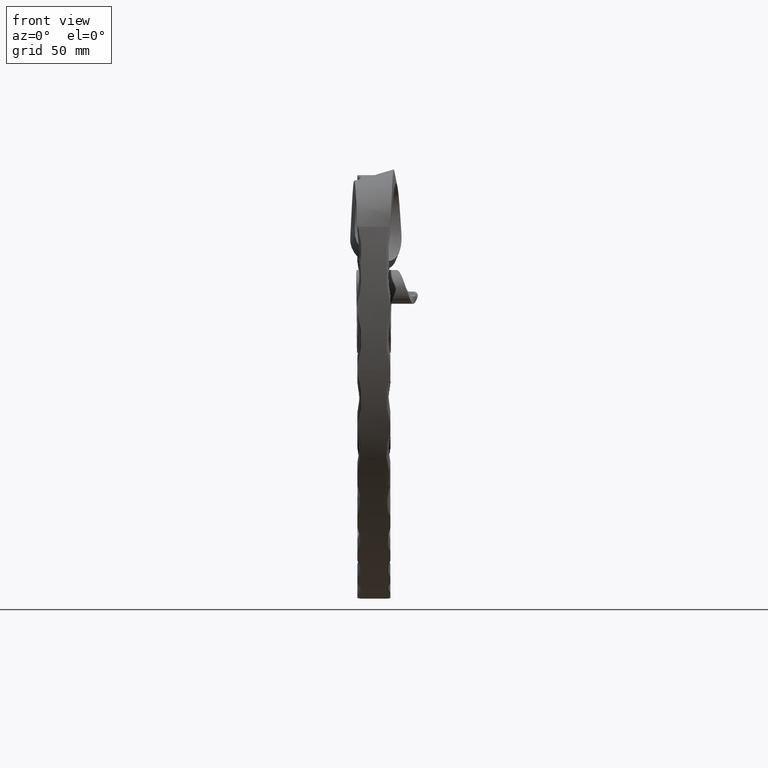
[diagram: clean part render]
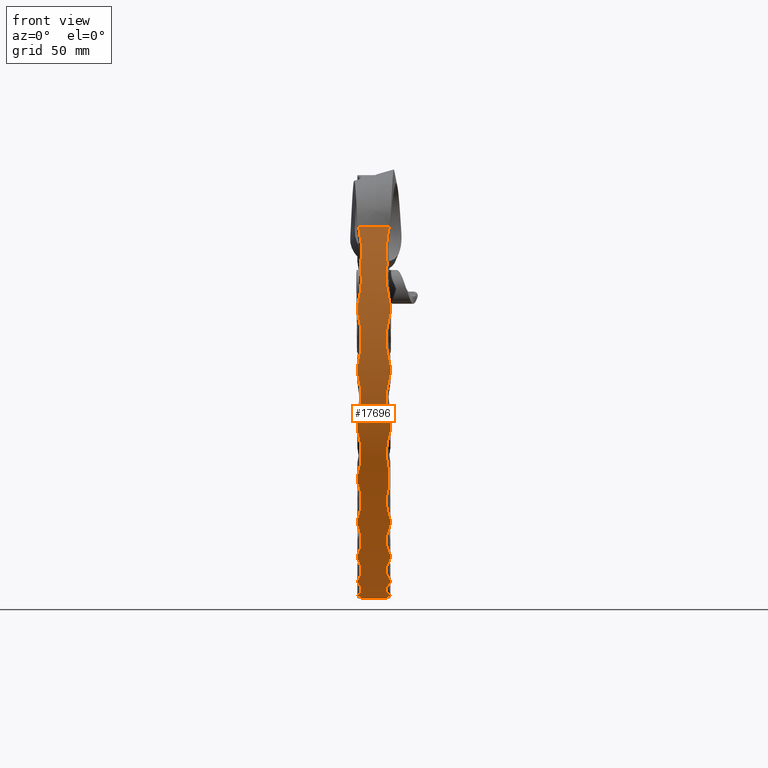
[diagram: same view with one face highlighted and labeled with its STEP entity id]
A machine part, front view. The second image highlights one B-rep face of the part: STEP entity #17696.
In plain terms, the highlighted cylindrical surface (partial cylindrical patch) has radius 179.967 mm, axis along (-1, -0, 0).
Its self-contained STEP definition (entity closure, byte-faithful):
#53 = VERTEX_POINT ( 'NONE', #21587 ) ;
#73 = DIRECTION ( 'NONE',  ( 0.0000000000000000000, 0.0000000000000000000, 1.000000000000000000 ) ) ;
#113 = CARTESIAN_POINT ( 'NONE',  ( 6.176503253794312100, 146.1620550236131900, -99.31292837517071300 ) ) ;
#235 = VERTEX_POINT ( 'NONE', #668 ) ;
#296 = VERTEX_POINT ( 'NONE', #1851 ) ;
#371 = B_SPLINE_CURVE_WITH_KNOTS ( 'NONE', 3,
 ( #26582, #7784, #18383, #6065, #20472, #8131, #22555, #10220, #24608, #12274 ),
 .UNSPECIFIED., .F., .F.,
 ( 4, 2, 2, 2, 4 ),
 ( 0.0000000000000000000, 0.009045962063268565100, 0.01130745257908568600, 0.01356894309490280600, 0.01809192412653703000 ),
 .UNSPECIFIED. ) ;
#569 = CARTESIAN_POINT ( 'NONE',  ( 0.0000000000000000000, 179.9668163863532300, 77.46681638635324400 ) ) ;
#605 = CARTESIAN_POINT ( 'NONE',  ( -6.827882187243727900, 16.26432204307453600, 2.664846962024886700 ) ) ;
#666 = CARTESIAN_POINT ( 'NONE',  ( 5.996456189705958700, 19.40543882302344500, -3.860385656431399900 ) ) ;
#668 = CARTESIAN_POINT ( 'NONE',  ( -7.417567950427967500, 2.775557561562891400E-014, 77.46681638635321600 ) ) ;
#687 = CARTESIAN_POINT ( 'NONE',  ( -6.919751718304326900, 162.5838808083381700, -101.6608608686288400 ) ) ;
#730 = CIRCLE ( 'NONE', #20687, 179.9668163863532300 ) ;
#742 = DIRECTION ( 'NONE',  ( 0.0000000000000000000, 0.0000000000000000000, 1.000000000000000000 ) ) ;
#788 = DIRECTION ( 'NONE',  ( -1.000000000000000000, -0.0000000000000000000, 0.0000000000000000000 ) ) ;
#912 = AXIS2_PLACEMENT_3D ( 'NONE', #18615, #6291, #20695 ) ;
#923 = ORIENTED_EDGE ( 'NONE', *, *, #16154, .T. ) ;
#960 = EDGE_CURVE ( 'NONE', #19304, #22079, #14930, .T. ) ;
#978 = CARTESIAN_POINT ( 'NONE',  ( -8.000000000000000000, 179.9668163863532300, 77.46681638635324400 ) ) ;
#1030 = CARTESIAN_POINT ( 'NONE',  ( 6.039150493033625700, 1.957760996837844700, 50.93812338866422400 ) ) ;
#1093 = CARTESIAN_POINT ( 'NONE',  ( 6.176503253794316500, 115.9917145749487300, -90.76227264691046100 ) ) ;
#1173 = ORIENTED_EDGE ( 'NONE', *, *, #18882, .T. ) ;
#1215 = CARTESIAN_POINT ( 'NONE',  ( 8.000000000000000000, 13.39351174735673000, 9.339074739624406300 ) ) ;
#1250 = CARTESIAN_POINT ( 'NONE',  ( -5.996456189705950700, 7.726618554629790300, 25.24245417836802500 ) ) ;
#1280 = EDGE_CURVE ( 'NONE', #7350, #12478, #1398, .T. ) ;
#1338 = CARTESIAN_POINT ( 'NONE',  ( -8.000000000000000000, 29.10781676536441900, -20.66379674529830600 ) ) ;
#1343 = CYLINDRICAL_SURFACE ( 'NONE', #13487, 179.9668163863532300 ) ;
#1356 = CARTESIAN_POINT ( 'NONE',  ( 6.336598732756095300, 0.9002550330176963800, 59.48845146260416100 ) ) ;
#1362 = ORIENTED_EDGE ( 'NONE', *, *, #16120, .T. ) ;
#1374 = EDGE_CURVE ( 'NONE', #24639, #53, #17170, .T. ) ;
#1387 = CARTESIAN_POINT ( 'NONE',  ( 8.000000000000000000, 179.9668163863532300, 77.46681638635324400 ) ) ;
#1398 = CIRCLE ( 'NONE', #912, 179.9668163863532300 ) ;
#1408 = ORIENTED_EDGE ( 'NONE', *, *, #1280, .F. ) ;
#1435 = VERTEX_POINT ( 'NONE', #21686 ) ;
#1463 = CARTESIAN_POINT ( 'NONE',  ( 8.000000000000000000, 179.9668163863532300, 77.46681638635324400 ) ) ;
#1640 = CARTESIAN_POINT ( 'NONE',  ( 7.437723017904978900, 68.14663142114298500, -63.55928736838796300 ) ) ;
#1678 = CARTESIAN_POINT ( 'NONE',  ( -6.176503253794319200, 87.76343341715569600, -77.10477291057038900 ) ) ;
#1851 = CARTESIAN_POINT ( 'NONE',  ( -8.000000000000000000, 14.36518457698943200, 7.010059845086943600 ) ) ;
#1938 = CARTESIAN_POINT ( 'NONE',  ( -8.000000000000000000, 155.5942177609980200, -100.8419928085003100 ) ) ;
#1949 = B_SPLINE_CURVE_WITH_KNOTS ( 'NONE', 3,
 ( #24783, #22727, #8038, #113, #14514, #2166, #16561, #4233, #18644, #6319 ),
 .UNSPECIFIED., .F., .F.,
 ( 4, 2, 2, 2, 4 ),
 ( 0.0000000000000000000, 0.007284974933649790800, 0.01456994986729958200, 0.02185492480094937400, 0.02913989973459916300 ),
 .UNSPECIFIED. ) ;
#1966 = DIRECTION ( 'NONE',  ( -1.000000000000000000, -0.0000000000000000000, 0.0000000000000000000 ) ) ;
#2011 = B_SPLINE_CURVE_WITH_KNOTS ( 'NONE', 3,
 ( #16039, #1640, #3709, #18117, #5804, #20201, #7861, #22286, #9940, #24339, #11997, #26397 ),
 .UNSPECIFIED., .F., .F.,
 ( 4, 2, 2, 2, 2, 4 ),
 ( 0.0000000000000000000, 0.006213590475578920600, 0.01242718095115784100, 0.01553397618894730400, 0.01864077142673676100, 0.02485436190231568900 ),
 .UNSPECIFIED. ) ;
#2166 = CARTESIAN_POINT ( 'NONE',  ( 5.996456189705952500, 138.9895157614755300, -97.78993980478607300 ) ) ;
#2227 = CARTESIAN_POINT ( 'NONE',  ( 8.000000000000000000, 179.9668163863532300, 77.46681638635324400 ) ) ;
#2483 = CARTESIAN_POINT ( 'NONE',  ( -8.000000000000000000, 27.74664804436377400, -18.53878423244274700 ) ) ;
#2540 = CARTESIAN_POINT ( 'NONE',  ( -8.000000000000000000, 96.10454843939962200, -81.76626753477390300 ) ) ;
#2541 = CARTESIAN_POINT ( 'NONE',  ( 5.873035981563065300, 172.6217960026988900, -102.3873230414218200 ) ) ;
#2586 = AXIS2_PLACEMENT_3D ( 'NONE', #25413, #13099, #742 ) ;
#2667 = CARTESIAN_POINT ( 'NONE',  ( -5.996456189705957800, 19.40543882302344900, -3.860385656431403000 ) ) ;
#2685 = ORIENTED_EDGE ( 'NONE', *, *, #24464, .T. ) ;
#2710 = CARTESIAN_POINT ( 'NONE',  ( 6.845041666498108400, 91.92725129679624300, -79.51367612014583100 ) ) ;
#2736 = CARTESIAN_POINT ( 'NONE',  ( 6.827882187243720800, 16.26432204307453600, 2.664846962024884900 ) ) ;
#2755 = CARTESIAN_POINT ( 'NONE',  ( -6.231548981046289600, 167.1399754296952300, -102.0516467300838300 ) ) ;
#2761 = DIRECTION ( 'NONE',  ( -1.000000000000000000, -0.0000000000000000000, 0.0000000000000000000 ) ) ;
#3014 = B_SPLINE_CURVE_WITH_KNOTS ( 'NONE', 3,
 ( #1356, #17650, #26036, #3424, #17826, #5510, #19920, #7583, #22001, #9650 ),
 .UNSPECIFIED., .F., .F.,
 ( 4, 2, 2, 2, 4 ),
 ( 0.0000000000000000000, 0.004531045892015666200, 0.006796568838023467700, 0.009062091784031270000, 0.01812418356806239100 ),
 .UNSPECIFIED. ) ;
#3042 = EDGE_CURVE ( 'NONE', #7898, #12057, #3014, .T. ) ;
#3045 = DIRECTION ( 'NONE',  ( 0.0000000000000000000, 0.0000000000000000000, 1.000000000000000000 ) ) ;
#3096 = CARTESIAN_POINT ( 'NONE',  ( 6.031649091904896000, 1.268117296386812100, 56.07055539799305400 ) ) ;
#3155 = CARTESIAN_POINT ( 'NONE',  ( 5.996456189705956100, 109.1923850624090300, -88.01747177392606100 ) ) ;
#3215 = EDGE_CURVE ( 'NONE', #12465, #19965, #17462, .T. ) ;
#3230 = CARTESIAN_POINT ( 'NONE',  ( -7.327193560248932900, 30.39449547481483900, -22.64184474425354700 ) ) ;
#3247 = VERTEX_POINT ( 'NONE', #23419 ) ;
#3316 = CARTESIAN_POINT ( 'NONE',  ( -6.176503253794321900, 9.997315987711525400, 18.27045684476081500 ) ) ;
#3350 = EDGE_CURVE ( 'NONE', #21818, #5110, #22204, .T. ) ;
#3407 = CARTESIAN_POINT ( 'NONE',  ( -6.827882187243739400, 31.73232178105328000, -24.61342603636359500 ) ) ;
#3424 = CARTESIAN_POINT ( 'NONE',  ( 5.998649452621048500, 0.4485060393287679800, 64.74670718760430100 ) ) ;
#3460 = DIRECTION ( 'NONE',  ( 0.0000000000000000000, 0.0000000000000000000, 1.000000000000000000 ) ) ;
#3528 = EDGE_CURVE ( 'NONE', #20594, #9747, #10076, .T. ) ;
#3530 = B_SPLINE_CURVE_WITH_KNOTS ( 'NONE', 3,
 ( #14585, #12521, #16635, #4310, #18719, #6390, #20796, #8455, #22893, #10537 ),
 .UNSPECIFIED., .F., .F.,
 ( 4, 2, 2, 2, 4 ),
 ( 0.0000000000000000000, 0.007285091840669814600, 0.01457018368133962900, 0.02185527552200944300, 0.02914036736267925900 ),
 .UNSPECIFIED. ) ;
#3537 = DIRECTION ( 'NONE',  ( 0.0000000000000000000, 0.0000000000000000000, 1.000000000000000000 ) ) ;
#3606 = B_SPLINE_CURVE_WITH_KNOTS ( 'NONE', 3,
 ( #13266, #7230, #13442, #1093, #15489, #3155, #17565, #5247, #19653, #7321 ),
 .UNSPECIFIED., .F., .F.,
 ( 4, 2, 2, 2, 4 ),
 ( 0.0000000000000000000, 0.007284974933649776900, 0.01456994986729955400, 0.02185492480094933200, 0.02913989973459910800 ),
 .UNSPECIFIED. ) ;
#3709 = CARTESIAN_POINT ( 'NONE',  ( 6.994550879125206700, 66.56260232213919900, -62.28913213118612200 ) ) ;
#3748 = CARTESIAN_POINT ( 'NONE',  ( -7.340771855430522100, 94.01415967294786900, -80.66533587830787200 ) ) ;
#3839 = ORIENTED_EDGE ( 'NONE', *, *, #960, .F. ) ;
#3928 = CARTESIAN_POINT ( 'NONE',  ( -8.000000000000000000, 29.10781676536441900, -20.66379674529830600 ) ) ;
#3999 = VERTEX_POINT ( 'NONE', #15913 ) ;
#4031 = CARTESIAN_POINT ( 'NONE',  ( 6.336598732756095300, 0.9002550330176963800, 59.48845146260416100 ) ) ;
#4184 = AXIS2_PLACEMENT_3D ( 'NONE', #978, #15376, #3045 ) ;
#4233 = CARTESIAN_POINT ( 'NONE',  ( 6.827882187243744700, 131.9725483744565800, -95.99900595906318300 ) ) ;
#4267 = CARTESIAN_POINT ( 'NONE',  ( -8.000000000000000000, 71.74517500213185900, -66.32515604724383700 ) ) ;
#4286 = EDGE_CURVE ( 'NONE', #7350, #5939, #7976, .T. ) ;
#4294 = CARTESIAN_POINT ( 'NONE',  ( 6.079348106695787700, 39.30787296153693700, -34.80155659141720300 ) ) ;
#4298 = DIRECTION ( 'NONE',  ( 0.0000000000000000000, 0.0000000000000000000, 1.000000000000000000 ) ) ;
#4310 = CARTESIAN_POINT ( 'NONE',  ( -6.162497115150344500, 55.12064092334537000, -52.17605366915426400 ) ) ;
#4314 = AXIS2_PLACEMENT_3D ( 'NONE', #15100, #2761, #17163 ) ;
#4532 = VERTEX_POINT ( 'NONE', #26257 ) ;
#4618 = CARTESIAN_POINT ( 'NONE',  ( 6.539379839972796500, 179.9668163863532600, -102.4999999999999600 ) ) ;
#4633 = CARTESIAN_POINT ( 'NONE',  ( 8.000000000000000000, 158.0968836138392500, -101.1662181866648500 ) ) ;
#4734 = VERTEX_POINT ( 'NONE', #7746 ) ;
#4752 = CARTESIAN_POINT ( 'NONE',  ( -6.176503253794319200, 22.85179184224471900, -10.33243823033205000 ) ) ;
#4793 = CARTESIAN_POINT ( 'NONE',  ( 6.003658107610575300, 85.68651768537127100, -75.84755030508137000 ) ) ;
#4819 = CARTESIAN_POINT ( 'NONE',  ( 8.000000000000000000, 14.36518457698943200, 7.010059845086943600 ) ) ;
#4838 = CARTESIAN_POINT ( 'NONE',  ( -6.013907497561216800, 176.2882661280291400, -102.4999999999999600 ) ) ;
#4903 = DIRECTION ( 'NONE',  ( -1.000000000000000000, -0.0000000000000000000, 0.0000000000000000000 ) ) ;
#4997 = CARTESIAN_POINT ( 'NONE',  ( 7.071077748949083000, 3.390648892462112300, 42.53838767744149900 ) ) ;
#5110 = VERTEX_POINT ( 'NONE', #15357 ) ;
#5119 = CARTESIAN_POINT ( 'NONE',  ( 8.000000000000000000, 155.5942177609979400, -100.8419928085003100 ) ) ;
#5186 = CARTESIAN_POINT ( 'NONE',  ( 6.336598732756095300, 0.9002550330176963800, 59.48845146260416100 ) ) ;
#5247 = CARTESIAN_POINT ( 'NONE',  ( 6.827882187243742100, 102.5927730407457800, -85.03579497826885400 ) ) ;
#5316 = CARTESIAN_POINT ( 'NONE',  ( -7.327193560248927500, 5.182557113850273300, 34.52399478844989000 ) ) ;
#5338 = EDGE_CURVE ( 'NONE', #19965, #19668, #2011, .T. ) ;
#5400 = VERTEX_POINT ( 'NONE', #12084 ) ;
#5406 = CARTESIAN_POINT ( 'NONE',  ( -7.340771855430531000, 12.49914066369049900, 11.52582485608000500 ) ) ;
#5494 = CARTESIAN_POINT ( 'NONE',  ( -5.996456189705950700, 35.95833832260288400, -30.49441741034062000 ) ) ;
#5510 = CARTESIAN_POINT ( 'NONE',  ( 6.019426045142277600, 0.3024602801736405700, 67.00995303351022900 ) ) ;
#5546 = CARTESIAN_POINT ( 'NONE',  ( 6.845041666498080000, 11.64003129052110800, 13.74920918047264400 ) ) ;
#5585 = VERTEX_POINT ( 'NONE', #23865 ) ;
#5674 = EDGE_CURVE ( 'NONE', #12057, #235, #24838, .T. ) ;
#5804 = CARTESIAN_POINT ( 'NONE',  ( 6.134613968831611300, 61.85081115018680700, -58.33078348879362800 ) ) ;
#5876 = ORIENTED_EDGE ( 'NONE', *, *, #23229, .T. ) ;
#5919 = CARTESIAN_POINT ( 'NONE',  ( -6.827882187243727000, 102.5927730407458400, -85.03579497826889600 ) ) ;
#5939 = VERTEX_POINT ( 'NONE', #19136 ) ;
#6007 = CARTESIAN_POINT ( 'NONE',  ( -6.031649091904893300, 1.268117296386812100, 56.07055539799306100 ) ) ;
#6065 = CARTESIAN_POINT ( 'NONE',  ( -6.048328979744834300, 0.2600255254849642200, 67.76659759412622500 ) ) ;
#6291 = DIRECTION ( 'NONE',  ( -1.000000000000000000, -0.0000000000000000000, 0.0000000000000000000 ) ) ;
#6319 = CARTESIAN_POINT ( 'NONE',  ( 8.000000000000000000, 127.4237202607822800, -94.65894592068310900 ) ) ;
#6373 = CARTESIAN_POINT ( 'NONE',  ( 5.989805783433340000, 37.38290501434966000, -32.34651073053569100 ) ) ;
#6390 = CARTESIAN_POINT ( 'NONE',  ( -6.003658107610575300, 60.50694571767625300, -57.15639504824680000 ) ) ;
#6589 = ORIENTED_EDGE ( 'NONE', *, *, #3350, .T. ) ;
#6636 = B_SPLINE_CURVE_WITH_KNOTS ( 'NONE', 3,
 ( #12991, #25315, #2710, #17114, #4793, #19199, #6870, #21272, #8927, #23359 ),
 .UNSPECIFIED., .F., .F.,
 ( 4, 2, 2, 2, 4 ),
 ( 0.0000000000000000000, 0.007284974933649796000, 0.01456994986729959200, 0.02185492480094938800, 0.02913989973459918400 ),
 .UNSPECIFIED. ) ;
#6697 = CARTESIAN_POINT ( 'NONE',  ( 6.231548981046281600, 167.1399754296953700, -102.0516467300838600 ) ) ;
#6823 = CARTESIAN_POINT ( 'NONE',  ( -7.514734177133108000, 159.8772443594587000, -101.3774812542251000 ) ) ;
#6828 = CARTESIAN_POINT ( 'NONE',  ( -7.340771855430527500, 26.48630048273901800, -16.54046000173760000 ) ) ;
#6834 = ORIENTED_EDGE ( 'NONE', *, *, #24463, .T. ) ;
#6870 = CARTESIAN_POINT ( 'NONE',  ( 6.162497115150348000, 79.51753596275985100, -71.87769588762233800 ) ) ;
#6928 = AXIS2_PLACEMENT_3D ( 'NONE', #10654, #25052, #12739 ) ;
#6937 = CARTESIAN_POINT ( 'NONE',  ( -8.000000000000000000, 155.5942177609980200, -100.8419928085003100 ) ) ;
#7159 = AXIS2_PLACEMENT_3D ( 'NONE', #1387, #15783, #3460 ) ;
#7181 = EDGE_CURVE ( 'NONE', #19293, #20594, #15494, .T. ) ;
#7230 = CARTESIAN_POINT ( 'NONE',  ( 7.340771855430519500, 122.7655682118162700, -93.18386185203382900 ) ) ;
#7321 = CARTESIAN_POINT ( 'NONE',  ( 8.000000000000000000, 98.34558067654447200, -82.92654033842886500 ) ) ;
#7350 = VERTEX_POINT ( 'NONE', #25962 ) ;
#7380 = CIRCLE ( 'NONE', #20414, 179.9668163863532300 ) ;
#7423 = CARTESIAN_POINT ( 'NONE',  ( 8.000000000000000000, 98.34558067654447200, -82.92654033842886500 ) ) ;
#7483 = CARTESIAN_POINT ( 'NONE',  ( -8.000000000000000000, 179.9668163863532300, 77.46681638635324400 ) ) ;
#7514 = DIRECTION ( 'NONE',  ( -1.000000000000000000, -0.0000000000000000000, 0.0000000000000000000 ) ) ;
#7520 = EDGE_CURVE ( 'NONE', #9747, #15423, #1949, .T. ) ;
#7565 = CARTESIAN_POINT ( 'NONE',  ( -6.176503253794308500, 40.47572776033304400, -36.27005645033558800 ) ) ;
#7583 = CARTESIAN_POINT ( 'NONE',  ( 6.274665954441390500, 0.07238517778311885600, 71.53660267881005600 ) ) ;
#7621 = CARTESIAN_POINT ( 'NONE',  ( 6.003658107610564600, 9.213691891279888000, 20.56830821336116000 ) ) ;
#7657 = DIRECTION ( 'NONE',  ( -1.000000000000000000, -0.0000000000000000000, 0.0000000000000000000 ) ) ;
#7746 = CARTESIAN_POINT ( 'NONE',  ( -8.000000000000000000, 98.34558067654447200, -82.92654033842886500 ) ) ;
#7784 = CARTESIAN_POINT ( 'NONE',  ( -6.715143394835781300, 2.820732652083151800E-014, 74.51884155562491700 ) ) ;
#7811 = CARTESIAN_POINT ( 'NONE',  ( -7.327193560248902700, 100.4486422049402300, -83.99674975499442600 ) ) ;
#7861 = CARTESIAN_POINT ( 'NONE',  ( 5.989903000623481700, 58.74552769320722200, -55.55402932051281800 ) ) ;
#7898 = VERTEX_POINT ( 'NONE', #4031 ) ;
#7976 = B_SPLINE_CURVE_WITH_KNOTS ( 'NONE', 3,
 ( #25361, #21234, #6823, #13036, #687, #15094, #2755, #17157, #4838, #19236 ),
 .UNSPECIFIED., .F., .F.,
 ( 4, 2, 2, 2, 4 ),
 ( 0.0000000000000000000, 0.002784105496166966700, 0.005568210992333933400, 0.01113642198466795000, 0.02227284396933598000 ),
 .UNSPECIFIED. ) ;
#7979 = CARTESIAN_POINT ( 'NONE',  ( -5.996456189705956100, 109.1923850624091300, -88.01747177392610400 ) ) ;
#8038 = CARTESIAN_POINT ( 'NONE',  ( 6.845041666498076400, 150.8985218811419900, -100.1532114914163900 ) ) ;
#8071 = CARTESIAN_POINT ( 'NONE',  ( -6.039150493033629300, 1.957760996837851300, 50.93812338866418100 ) ) ;
#8082 = CARTESIAN_POINT ( 'NONE',  ( -6.827882187243727000, 131.9725483744566100, -95.99900595906319700 ) ) ;
#8131 = CARTESIAN_POINT ( 'NONE',  ( -5.994627112117184400, 0.3966806220810735200, 65.50048078062128800 ) ) ;
#8405 = VECTOR ( 'NONE', #7657, 1000.000000000000000 ) ;
#8443 = CARTESIAN_POINT ( 'NONE',  ( 6.125640566160877900, 34.87827366083973100, -29.03047102031514000 ) ) ;
#8455 = CARTESIAN_POINT ( 'NONE',  ( -6.845041666498091500, 66.01663112364934700, -61.85007177634151500 ) ) ;
#8551 = CARTESIAN_POINT ( 'NONE',  ( -8.000000000000000000, 48.42999808348044900, -45.35875273911996400 ) ) ;
#8673 = VERTEX_POINT ( 'NONE', #2540 ) ;
#8715 = CARTESIAN_POINT ( 'NONE',  ( -8.000000000000000000, 14.36518457698943200, 7.010059845086943600 ) ) ;
#8743 = VERTEX_POINT ( 'NONE', #14801 ) ;
#8749 = CARTESIAN_POINT ( 'NONE',  ( 8.000000000000000000, 125.0153158685234000, -93.90525715854586500 ) ) ;
#8759 = CARTESIAN_POINT ( 'NONE',  ( 6.919751718304310000, 162.5838808083382500, -101.6608608686288600 ) ) ;
#8780 = EDGE_CURVE ( 'NONE', #3247, #3999, #21949, .T. ) ;
#8814 = ORIENTED_EDGE ( 'NONE', *, *, #17199, .T. ) ;
#8824 = CARTESIAN_POINT ( 'NONE',  ( 8.000000000000000000, 27.74664804436377400, -18.53878423244274700 ) ) ;
#8851 = VERTEX_POINT ( 'NONE', #19292 ) ;
#8862 = CARTESIAN_POINT ( 'NONE',  ( 7.340771855430533700, 26.48630048273899400, -16.54046000173760300 ) ) ;
#8924 = EDGE_CURVE ( 'NONE', #19293, #5939, #15785, .T. ) ;
#8927 = CARTESIAN_POINT ( 'NONE',  ( 7.327193560248875100, 73.63056085284475200, -67.74414730213442200 ) ) ;
#9032 = EDGE_CURVE ( 'NONE', #235, #15431, #371, .T. ) ;
#9049 = ORIENTED_EDGE ( 'NONE', *, *, #7520, .T. ) ;
#9187 = ORIENTED_EDGE ( 'NONE', *, *, #8780, .F. ) ;
#9216 = B_SPLINE_CURVE_WITH_KNOTS ( 'NONE', 3,
 ( #8715, #21056, #605, #15013, #2667, #17073, #4752, #19157, #6828, #21238 ),
 .UNSPECIFIED., .F., .F.,
 ( 4, 2, 2, 2, 4 ),
 ( 0.0000000000000000000, 0.007285091840669801600, 0.01457018368133960300, 0.02185527552200940500, 0.02914036736267920600 ),
 .UNSPECIFIED. ) ;
#9273 = ORIENTED_EDGE ( 'NONE', *, *, #20460, .T. ) ;
#9484 = B_SPLINE_CURVE_WITH_KNOTS ( 'NONE', 3,
 ( #11304, #4997, #13381, #1030, #15429, #3096, #17500, #5186 ),
 .UNSPECIFIED., .F., .F.,
 ( 4, 2, 2, 4 ),
 ( 0.0000000000000000000, 0.01029302724017323900, 0.01543954086025985800, 0.02058605448034647700 ),
 .UNSPECIFIED. ) ;
#9553 = DIRECTION ( 'NONE',  ( 0.0000000000000000000, 0.0000000000000000000, 1.000000000000000000 ) ) ;
#9586 = CARTESIAN_POINT ( 'NONE',  ( 8.000000000000000000, 179.9668163863532600, -102.4999999999999600 ) ) ;
#9632 = CARTESIAN_POINT ( 'NONE',  ( -7.340771855430528300, 45.13258945420420100, -41.75301427766098100 ) ) ;
#9650 = CARTESIAN_POINT ( 'NONE',  ( 7.417567950427963900, 2.775557561562891400E-014, 77.46681638635321600 ) ) ;
#9685 = CARTESIAN_POINT ( 'NONE',  ( 6.162497115150357800, 7.037490406227402900, 27.57403634726620800 ) ) ;
#9724 = CARTESIAN_POINT ( 'NONE',  ( 0.0000000000000000000, 2.775557561562891400E-014, 77.46681638635321600 ) ) ;
#9747 = VERTEX_POINT ( 'NONE', #5119 ) ;
#9868 = CARTESIAN_POINT ( 'NONE',  ( -8.000000000000000000, 179.9668163863532300, 77.46681638635324400 ) ) ;
#9878 = B_SPLINE_CURVE_WITH_KNOTS ( 'NONE', 3,
 ( #10440, #24833, #16618, #4294, #18701, #6373, #20777, #8443, #22879, #10522, #24916, #12594 ),
 .UNSPECIFIED., .F., .F.,
 ( 4, 2, 2, 2, 2, 4 ),
 ( 0.0000000000000000000, 0.006226585123854537500, 0.009339877685781806200, 0.01245317024770907500, 0.01867975537156361200, 0.02490634049541815000 ),
 .UNSPECIFIED. ) ;
#9940 = CARTESIAN_POINT ( 'NONE',  ( 6.073768647245057800, 56.45006097932958500, -53.42529238315612600 ) ) ;
#10068 = CARTESIAN_POINT ( 'NONE',  ( -6.176503253794326300, 115.9917145749488400, -90.76227264691053200 ) ) ;
#10076 = CIRCLE ( 'NONE', #14075, 179.9668163863532300 ) ;
#10158 = CARTESIAN_POINT ( 'NONE',  ( -7.071077748949092800, 3.390648892462150500, 42.53838767744138500 ) ) ;
#10168 = CARTESIAN_POINT ( 'NONE',  ( -5.996456189705943600, 138.9895157614755000, -97.78993980478607300 ) ) ;
#10188 = VERTEX_POINT ( 'NONE', #7423 ) ;
#10220 = CARTESIAN_POINT ( 'NONE',  ( -6.059641092050115100, 0.6180571393160254600, 62.48825613027641200 ) ) ;
#10362 = B_SPLINE_CURVE_WITH_KNOTS ( 'NONE', 3,
 ( #16166, #7811, #5919, #20322, #7979, #22409, #10068, #24458, #12120, #26519 ),
 .UNSPECIFIED., .F., .F.,
 ( 4, 2, 2, 2, 4 ),
 ( 0.0000000000000000000, 0.007285091840669846700, 0.01457018368133969300, 0.02185527552200954000, 0.02914036736267938700 ),
 .UNSPECIFIED. ) ;
#10440 = CARTESIAN_POINT ( 'NONE',  ( 6.999999999999995600, 43.91957005969383900, -40.34320766581569000 ) ) ;
#10522 = CARTESIAN_POINT ( 'NONE',  ( 6.981403233586814100, 31.33301687584516400, -24.02312508107547400 ) ) ;
#10537 = CARTESIAN_POINT ( 'NONE',  ( -8.000000000000000000, 69.73954478412723300, -64.79352100734364200 ) ) ;
#10561 = ORIENTED_EDGE ( 'NONE', *, *, #16415, .F. ) ;
#10654 = CARTESIAN_POINT ( 'NONE',  ( 7.000000000000001800, 179.9668163863532300, 77.46681638635324400 ) ) ;
#10734 = CARTESIAN_POINT ( 'NONE',  ( 7.417567950427963900, 2.775557561562891400E-014, 77.46681638635321600 ) ) ;
#10845 = CARTESIAN_POINT ( 'NONE',  ( 7.514734177133085800, 159.8772443594587000, -101.3774812542251200 ) ) ;
#10911 = AXIS2_PLACEMENT_3D ( 'NONE', #11316, #25714, #13391 ) ;
#10963 = VECTOR ( 'NONE', #7514, 1000.000000000000000 ) ;
#11009 = B_SPLINE_CURVE_WITH_KNOTS ( 'NONE', 3,
 ( #19716, #5316, #25921, #13598, #1250, #15647, #3316, #17717, #5406, #19810 ),
 .UNSPECIFIED., .F., .F.,
 ( 4, 2, 2, 2, 4 ),
 ( 8.673617379884035500E-019, 0.007285091840669853700, 0.01457018368133969700, 0.02185527552200953300, 0.02914036736267938000 ),
 .UNSPECIFIED. ) ;
#11135 = DIRECTION ( 'NONE',  ( -1.000000000000000000, -0.0000000000000000000, 0.0000000000000000000 ) ) ;
#11245 = CARTESIAN_POINT ( 'NONE',  ( -6.336598732756098900, 0.9002550330177135900, 59.48845146260418900 ) ) ;
#11304 = CARTESIAN_POINT ( 'NONE',  ( 8.000000000000000000, 4.096955662428958300, 39.28505255613126900 ) ) ;
#11316 = CARTESIAN_POINT ( 'NONE',  ( 8.000000000000000000, 179.9668163863532300, 77.46681638635324400 ) ) ;
#11350 = CIRCLE ( 'NONE', #4314, 179.9668163863532300 ) ;
#11496 = EDGE_CURVE ( 'NONE', #15423, #24672, #20469, .T. ) ;
#11554 = ORIENTED_EDGE ( 'NONE', *, *, #7181, .T. ) ;
#11748 = CARTESIAN_POINT ( 'NONE',  ( 7.327193560248929300, 5.182557113850260900, 34.52399478844989000 ) ) ;
#11927 = DIRECTION ( 'NONE',  ( 0.0000000000000000000, 0.0000000000000000000, 1.000000000000000000 ) ) ;
#11945 = CARTESIAN_POINT ( 'NONE',  ( -6.162497115150354300, 79.51753596275975200, -71.87769588762223800 ) ) ;
#11997 = CARTESIAN_POINT ( 'NONE',  ( 6.592929331406200100, 52.72873335678235700, -49.82316462842430800 ) ) ;
#12057 = VERTEX_POINT ( 'NONE', #10734 ) ;
#12084 = CARTESIAN_POINT ( 'NONE',  ( 8.000000000000000000, 13.39351174735673000, 9.339074739624406300 ) ) ;
#12120 = CARTESIAN_POINT ( 'NONE',  ( -7.340771855430549700, 122.7655682118164000, -93.18386185203388500 ) ) ;
#12221 = CARTESIAN_POINT ( 'NONE',  ( -6.176503253794323600, 146.1620550236132800, -99.31292837517071300 ) ) ;
#12274 = CARTESIAN_POINT ( 'NONE',  ( -6.336598732756098900, 0.9002550330177135900, 59.48845146260418900 ) ) ;
#12287 = CARTESIAN_POINT ( 'NONE',  ( -8.000000000000000000, 179.9668163863532300, 77.46681638635324400 ) ) ;
#12307 = FACE_OUTER_BOUND ( 'NONE', #15917, .T. ) ;
#12414 = DIRECTION ( 'NONE',  ( -1.000000000000000000, -0.0000000000000000000, 0.0000000000000000000 ) ) ;
#12465 = VERTEX_POINT ( 'NONE', #17175 ) ;
#12478 = VERTEX_POINT ( 'NONE', #6937 ) ;
#12521 = CARTESIAN_POINT ( 'NONE',  ( -7.327193560248883100, 50.04047456708148900, -47.08345024398621300 ) ) ;
#12594 = CARTESIAN_POINT ( 'NONE',  ( 8.000000000000000000, 29.10781676536450400, -20.66379674529843100 ) ) ;
#12739 = DIRECTION ( 'NONE',  ( 0.0000000000000000000, 0.0000000000000000000, 1.000000000000000000 ) ) ;
#12911 = CARTESIAN_POINT ( 'NONE',  ( 8.000000000000000000, 158.0968836138392500, -101.1662181866648500 ) ) ;
#12991 = CARTESIAN_POINT ( 'NONE',  ( 8.000000000000000000, 96.10454843939976400, -81.76626753477397400 ) ) ;
#13016 = CARTESIAN_POINT ( 'NONE',  ( 6.003658107610576200, 21.68122661895609900, -8.205476854398284600 ) ) ;
#13025 = EDGE_CURVE ( 'NONE', #4734, #8673, #25910, .T. ) ;
#13036 = CARTESIAN_POINT ( 'NONE',  ( -7.102119696078625900, 161.6765707643822300, -101.5704440313138100 ) ) ;
#13099 = DIRECTION ( 'NONE',  ( -1.000000000000000000, -0.0000000000000000000, 0.0000000000000000000 ) ) ;
#13148 = CARTESIAN_POINT ( 'NONE',  ( 8.000000000000000000, 179.9668163863532300, 77.46681638635324400 ) ) ;
#13266 = CARTESIAN_POINT ( 'NONE',  ( 8.000000000000000000, 125.0153158685234000, -93.90525715854586500 ) ) ;
#13381 = CARTESIAN_POINT ( 'NONE',  ( 6.463315816327998700, 2.764475270358898000, 45.85753430615655200 ) ) ;
#13391 = DIRECTION ( 'NONE',  ( 0.0000000000000000000, 0.0000000000000000000, 1.000000000000000000 ) ) ;
#13442 = CARTESIAN_POINT ( 'NONE',  ( 6.845041666498074700, 120.5104433065691000, -92.41190432032877300 ) ) ;
#13487 = AXIS2_PLACEMENT_3D ( 'NONE', #569, #4903, #15062 ) ;
#13598 = CARTESIAN_POINT ( 'NONE',  ( -6.162497115150359600, 7.037490406227397500, 27.57403634726621200 ) ) ;
#13628 = VERTEX_POINT ( 'NONE', #14704 ) ;
#13745 = CARTESIAN_POINT ( 'NONE',  ( 7.340771855430535500, 12.49914066369051600, 11.52582485608001600 ) ) ;
#13774 = ORIENTED_EDGE ( 'NONE', *, *, #3042, .T. ) ;
#14028 = CARTESIAN_POINT ( 'NONE',  ( -6.003658107610570800, 85.68651768537117200, -75.84755030508129900 ) ) ;
#14075 = AXIS2_PLACEMENT_3D ( 'NONE', #1463, #15860, #3537 ) ;
#14292 = CARTESIAN_POINT ( 'NONE',  ( -7.340771855430539900, 153.2534056475747700, -100.5220328785594300 ) ) ;
#14327 = CARTESIAN_POINT ( 'NONE',  ( 8.000000000000000000, 179.9668163863532300, 77.46681638635324400 ) ) ;
#14360 = DIRECTION ( 'NONE',  ( 0.0000000000000000000, 0.0000000000000000000, 1.000000000000000000 ) ) ;
#14514 = CARTESIAN_POINT ( 'NONE',  ( 6.003658107610569900, 143.7804732060556300, -98.84148836523749500 ) ) ;
#14585 = CARTESIAN_POINT ( 'NONE',  ( -8.000000000000000000, 48.42999808348044900, -45.35875273911996400 ) ) ;
#14704 = CARTESIAN_POINT ( 'NONE',  ( -8.000000000000000000, 69.73954478412723300, -64.79352100734364200 ) ) ;
#14801 = CARTESIAN_POINT ( 'NONE',  ( 8.000000000000000000, 96.10454843939976400, -81.76626753477397400 ) ) ;
#14896 = EDGE_CURVE ( 'NONE', #15344, #8851, #730, .T. ) ;
#14930 = CIRCLE ( 'NONE', #4184, 179.9668163863532300 ) ;
#15013 = CARTESIAN_POINT ( 'NONE',  ( -6.162497115150354300, 18.32208065283165900, -1.683803911969901100 ) ) ;
#15062 = DIRECTION ( 'NONE',  ( 0.0000000000000000000, 0.0000000000000000000, 1.000000000000000000 ) ) ;
#15076 = CARTESIAN_POINT ( 'NONE',  ( 6.162497115150352500, 18.32208065283166600, -1.683803911969902200 ) ) ;
#15094 = CARTESIAN_POINT ( 'NONE',  ( -6.446795145543450000, 165.3156972319279100, -101.9119575505386700 ) ) ;
#15100 = CARTESIAN_POINT ( 'NONE',  ( -8.000000000000000000, 179.9668163863532300, 77.46681638635324400 ) ) ;
#15153 = CIRCLE ( 'NONE', #10911, 179.9668163863532300 ) ;
#15200 = DIRECTION ( 'NONE',  ( 0.0000000000000000000, 0.0000000000000000000, 1.000000000000000000 ) ) ;
#15283 = ORIENTED_EDGE ( 'NONE', *, *, #26598, .T. ) ;
#15344 = VERTEX_POINT ( 'NONE', #8551 ) ;
#15357 = CARTESIAN_POINT ( 'NONE',  ( 8.000000000000000000, 14.36518457698943200, 7.010059845086943600 ) ) ;
#15376 = DIRECTION ( 'NONE',  ( -1.000000000000000000, -0.0000000000000000000, 0.0000000000000000000 ) ) ;
#15423 = VERTEX_POINT ( 'NONE', #25279 ) ;
#15429 = CARTESIAN_POINT ( 'NONE',  ( 5.980163396134878800, 1.710636217849511600, 52.65231916270734300 ) ) ;
#15431 = VERTEX_POINT ( 'NONE', #11245 ) ;
#15489 = CARTESIAN_POINT ( 'NONE',  ( 6.003658107610571700, 113.7281082330151800, -89.88462011575435900 ) ) ;
#15494 = B_SPLINE_CURVE_WITH_KNOTS ( 'NONE', 3,
 ( #4618, #16946, #2541, #6697, #21106, #8759, #23193, #10845, #25233, #12911 ),
 .UNSPECIFIED., .F., .F.,
 ( 4, 2, 2, 2, 4 ),
 ( 0.0000000000000000000, 0.01099399842259071700, 0.01649099763388603400, 0.01923949723953365100, 0.02198799684518126800 ),
 .UNSPECIFIED. ) ;
#15647 = CARTESIAN_POINT ( 'NONE',  ( -6.003658107610557500, 9.213691891279886200, 20.56830821336116300 ) ) ;
#15783 = DIRECTION ( 'NONE',  ( -1.000000000000000000, -0.0000000000000000000, 0.0000000000000000000 ) ) ;
#15785 = LINE ( 'NONE', #9586, #10963 ) ;
#15860 = DIRECTION ( 'NONE',  ( -1.000000000000000000, -0.0000000000000000000, 0.0000000000000000000 ) ) ;
#15913 = CARTESIAN_POINT ( 'NONE',  ( -8.000000000000000000, 125.0153158685235400, -93.90525715854592200 ) ) ;
#15917 = EDGE_LOOP ( 'NONE', ( #22541, #11554, #25028, #9049, #19826, #19051, #20737, #5876, #15925, #25603, #1173, #24031, #18831, #6589, #6834, #2685, #9273, #23603, #13774, #18977, #16040, #923, #26286, #16161, #25340, #8814, #3839, #15283, #18013, #24084, #10561, #1362, #17255, #16015, #9187, #20637, #1408, #19313 ) ) ;
#15925 = ORIENTED_EDGE ( 'NONE', *, *, #3215, .T. ) ;
#15945 = AXIS2_PLACEMENT_3D ( 'NONE', #13148, #788, #15200 ) ;
#15991 = CIRCLE ( 'NONE', #7159, 179.9668163863532300 ) ;
#16015 = ORIENTED_EDGE ( 'NONE', *, *, #22294, .T. ) ;
#16039 = CARTESIAN_POINT ( 'NONE',  ( 8.000000000000000000, 69.73954478412716200, -64.79352100734355700 ) ) ;
#16040 = ORIENTED_EDGE ( 'NONE', *, *, #9032, .T. ) ;
#16080 = CARTESIAN_POINT ( 'NONE',  ( -6.845041666498080900, 91.92725129679611500, -79.51367612014574600 ) ) ;
#16120 = EDGE_CURVE ( 'NONE', #22398, #8673, #26645, .T. ) ;
#16154 = EDGE_CURVE ( 'NONE', #15431, #53, #17044, .T. ) ;
#16161 = ORIENTED_EDGE ( 'NONE', *, *, #20152, .T. ) ;
#16166 = CARTESIAN_POINT ( 'NONE',  ( -8.000000000000000000, 98.34558067654447200, -82.92654033842886500 ) ) ;
#16168 = CARTESIAN_POINT ( 'NONE',  ( -6.141348505317187900, 1.071825491979216900, 57.77959015923472200 ) ) ;
#16249 = CARTESIAN_POINT ( 'NONE',  ( -6.336598732756098900, 0.9002550330177135900, 59.48845146260418900 ) ) ;
#16259 = CARTESIAN_POINT ( 'NONE',  ( 6.539379839972796500, 179.9668163863532600, -102.4999999999999600 ) ) ;
#16375 = DIRECTION ( 'NONE',  ( 0.0000000000000000000, 0.0000000000000000000, 1.000000000000000000 ) ) ;
#16388 = B_SPLINE_CURVE_WITH_KNOTS ( 'NONE', 3,
 ( #1338, #3230, #3407, #17807, #5494, #19901, #7565, #21984, #9632, #24044 ),
 .UNSPECIFIED., .F., .F.,
 ( 4, 2, 2, 2, 4 ),
 ( 7.949501638480626900E-018, 0.007285091840669842400, 0.01457018368133967800, 0.02185527552200951200, 0.02914036736267934500 ),
 .UNSPECIFIED. ) ;
#16415 = EDGE_CURVE ( 'NONE', #22398, #13628, #17127, .T. ) ;
#16561 = CARTESIAN_POINT ( 'NONE',  ( 6.162497115150364900, 136.6260179556125300, -97.21980724395007200 ) ) ;
#16618 = CARTESIAN_POINT ( 'NONE',  ( 6.319984266177736600, 41.25848687753922700, -37.21682704200135600 ) ) ;
#16623 = DIRECTION ( 'NONE',  ( -1.000000000000000000, -0.0000000000000000000, 0.0000000000000000000 ) ) ;
#16635 = CARTESIAN_POINT ( 'NONE',  ( -6.827882187243712800, 51.70019989866332100, -48.79290157139141800 ) ) ;
#16840 = EDGE_CURVE ( 'NONE', #24672, #10188, #3606, .T. ) ;
#16946 = CARTESIAN_POINT ( 'NONE',  ( 6.013907497561228300, 176.2882661280292200, -102.5000000000000000 ) ) ;
#17044 = B_SPLINE_CURVE_WITH_KNOTS ( 'NONE', 3,
 ( #16249, #16168, #6007, #20413, #8071, #22498, #10158, #24548 ),
 .UNSPECIFIED., .F., .F.,
 ( 4, 2, 2, 4 ),
 ( 0.0000000000000000000, 0.005169324217574923700, 0.01033864843514984700, 0.02067729687029967000 ),
 .UNSPECIFIED. ) ;
#17073 = CARTESIAN_POINT ( 'NONE',  ( -6.003658107610574400, 21.68122661895609600, -8.205476854398286300 ) ) ;
#17114 = CARTESIAN_POINT ( 'NONE',  ( 6.176503253794335200, 87.76343341715575300, -77.10477291057046000 ) ) ;
#17127 = CIRCLE ( 'NONE', #21941, 179.9668163863532300 ) ;
#17137 = CARTESIAN_POINT ( 'NONE',  ( 7.327193560248900000, 15.28900646789063700, 4.838707938689556600 ) ) ;
#17157 = CARTESIAN_POINT ( 'NONE',  ( -5.873035981563064400, 172.6217960026988300, -102.3873230414218500 ) ) ;
#17163 = DIRECTION ( 'NONE',  ( 0.0000000000000000000, 0.0000000000000000000, 1.000000000000000000 ) ) ;
#17170 = CIRCLE ( 'NONE', #17480, 179.9668163863532300 ) ;
#17175 = CARTESIAN_POINT ( 'NONE',  ( 8.000000000000000000, 71.74517500213191600, -66.32515604724389400 ) ) ;
#17199 = EDGE_CURVE ( 'NONE', #296, #22079, #9216, .T. ) ;
#17213 = EDGE_CURVE ( 'NONE', #296, #19938, #11350, .T. ) ;
#17255 = ORIENTED_EDGE ( 'NONE', *, *, #13025, .F. ) ;
#17462 = CIRCLE ( 'NONE', #15945, 179.9668163863532300 ) ;
#17480 = AXIS2_PLACEMENT_3D ( 'NONE', #23486, #11135, #25536 ) ;
#17500 = CARTESIAN_POINT ( 'NONE',  ( 6.141348505317187000, 1.071825491979192500, 57.77959015923469400 ) ) ;
#17565 = CARTESIAN_POINT ( 'NONE',  ( 6.162497115150364000, 106.9637181902284200, -87.04576349049479200 ) ) ;
#17650 = CARTESIAN_POINT ( 'NONE',  ( 6.165441746073645000, 0.7498558086748504700, 60.98644485897286000 ) ) ;
#17696 = ADVANCED_FACE ( 'NONE', ( #12307 ), #1343, .T. ) ;
#17717 = CARTESIAN_POINT ( 'NONE',  ( -6.845041666498081800, 11.64003129052109400, 13.74920918047263600 ) ) ;
#17807 = CARTESIAN_POINT ( 'NONE',  ( -6.162497115150357800, 34.51363707789013800, -28.53890946385461900 ) ) ;
#17826 = CARTESIAN_POINT ( 'NONE',  ( 5.994627112117190600, 0.3966806220810754600, 65.50048078062127400 ) ) ;
#18013 = ORIENTED_EDGE ( 'NONE', *, *, #14896, .F. ) ;
#18117 = CARTESIAN_POINT ( 'NONE',  ( 6.342998233327908700, 63.41469499984602000, -59.67487644942912800 ) ) ;
#18153 = CARTESIAN_POINT ( 'NONE',  ( -8.000000000000000000, 96.10454843939962200, -81.76626753477390300 ) ) ;
#18335 = CARTESIAN_POINT ( 'NONE',  ( -8.000000000000000000, 127.4237202607822800, -94.65894592068310900 ) ) ;
#18383 = CARTESIAN_POINT ( 'NONE',  ( -6.274665954441387900, 0.07238517778311846800, 71.53660267881002700 ) ) ;
#18615 = CARTESIAN_POINT ( 'NONE',  ( -8.000000000000000000, 179.9668163863532300, 77.46681638635324400 ) ) ;
#18644 = CARTESIAN_POINT ( 'NONE',  ( 7.327193560248919500, 129.6806159087413700, -95.34788570161242700 ) ) ;
#18701 = CARTESIAN_POINT ( 'NONE',  ( 6.029154188782239700, 38.66276052332595700, -33.98856657597248400 ) ) ;
#18719 = CARTESIAN_POINT ( 'NONE',  ( -5.996456189705953400, 56.88282918928044300, -53.85112546780805300 ) ) ;
#18831 = ORIENTED_EDGE ( 'NONE', *, *, #25003, .T. ) ;
#18859 = AXIS2_PLACEMENT_3D ( 'NONE', #2227, #16623, #4298 ) ;
#18882 = EDGE_CURVE ( 'NONE', #19668, #5585, #19694, .T. ) ;
#18977 = ORIENTED_EDGE ( 'NONE', *, *, #5674, .T. ) ;
#19051 = ORIENTED_EDGE ( 'NONE', *, *, #16840, .T. ) ;
#19136 = CARTESIAN_POINT ( 'NONE',  ( -6.539379839972787600, 179.9668163863532600, -102.4999999999999600 ) ) ;
#19157 = CARTESIAN_POINT ( 'NONE',  ( -6.845041666498072900, 25.25432086753172100, -14.49993727539122900 ) ) ;
#19199 = CARTESIAN_POINT ( 'NONE',  ( 5.996456189705949800, 81.54371740626201900, -73.22148224461953700 ) ) ;
#19236 = CARTESIAN_POINT ( 'NONE',  ( -6.539379839972787600, 179.9668163863532600, -102.4999999999999600 ) ) ;
#19292 = CARTESIAN_POINT ( 'NONE',  ( -8.000000000000000000, 46.72065377051279000, -43.50225052082089400 ) ) ;
#19293 = VERTEX_POINT ( 'NONE', #16259 ) ;
#19304 = VERTEX_POINT ( 'NONE', #3928 ) ;
#19310 = EDGE_CURVE ( 'NONE', #3247, #12478, #25713, .T. ) ;
#19313 = ORIENTED_EDGE ( 'NONE', *, *, #4286, .T. ) ;
#19448 = EDGE_CURVE ( 'NONE', #10188, #8743, #15153, .T. ) ;
#19653 = CARTESIAN_POINT ( 'NONE',  ( 7.327193560248906200, 100.4486422049402100, -83.99674975499445400 ) ) ;
#19668 = VERTEX_POINT ( 'NONE', #20744 ) ;
#19694 = CIRCLE ( 'NONE', #6928, 179.9668163863532300 ) ;
#19716 = CARTESIAN_POINT ( 'NONE',  ( -8.000000000000000000, 4.649636027916958600, 36.82273598825720000 ) ) ;
#19810 = CARTESIAN_POINT ( 'NONE',  ( -8.000000000000000000, 13.39351174735673000, 9.339074739624406300 ) ) ;
#19826 = ORIENTED_EDGE ( 'NONE', *, *, #11496, .T. ) ;
#19901 = CARTESIAN_POINT ( 'NONE',  ( -6.003658107610561100, 38.95375565715362100, -34.37855214057827200 ) ) ;
#19920 = CARTESIAN_POINT ( 'NONE',  ( 6.048328979744835200, 0.2600255254849652100, 67.76659759412618200 ) ) ;
#19938 = VERTEX_POINT ( 'NONE', #26569 ) ;
#19953 = CARTESIAN_POINT ( 'NONE',  ( 6.176503253794319200, 9.997315987711537800, 18.27045684476081900 ) ) ;
#19965 = VERTEX_POINT ( 'NONE', #24692 ) ;
#19991 = AXIS2_PLACEMENT_3D ( 'NONE', #7483, #21905, #9553 ) ;
#20152 = EDGE_CURVE ( 'NONE', #24639, #19938, #11009, .T. ) ;
#20201 = CARTESIAN_POINT ( 'NONE',  ( 6.003305520422817000, 59.52121673867717500, -56.25675476657181000 ) ) ;
#20322 = CARTESIAN_POINT ( 'NONE',  ( -6.162497115150350700, 106.9637181902284500, -87.04576349049480700 ) ) ;
#20413 = CARTESIAN_POINT ( 'NONE',  ( -5.980163396134877000, 1.710636217849515400, 52.65231916270732900 ) ) ;
#20414 = AXIS2_PLACEMENT_3D ( 'NONE', #24746, #12414, #73 ) ;
#20423 = CARTESIAN_POINT ( 'NONE',  ( -7.327193560248916000, 129.6806159087414000, -95.34788570161242700 ) ) ;
#20460 = EDGE_CURVE ( 'NONE', #20904, #4532, #7380, .T. ) ;
#20469 = CIRCLE ( 'NONE', #18859, 179.9668163863532300 ) ;
#20472 = CARTESIAN_POINT ( 'NONE',  ( -6.019426045142272300, 0.3024602801736388500, 67.00995303351027100 ) ) ;
#20594 = VERTEX_POINT ( 'NONE', #4633 ) ;
#20637 = ORIENTED_EDGE ( 'NONE', *, *, #19310, .T. ) ;
#20687 = AXIS2_PLACEMENT_3D ( 'NONE', #12287, #26685, #14360 ) ;
#20695 = DIRECTION ( 'NONE',  ( 0.0000000000000000000, 0.0000000000000000000, 1.000000000000000000 ) ) ;
#20737 = ORIENTED_EDGE ( 'NONE', *, *, #19448, .T. ) ;
#20744 = CARTESIAN_POINT ( 'NONE',  ( 7.000000000000001800, 51.29352706254798700, -48.35543766606656400 ) ) ;
#20777 = CARTESIAN_POINT ( 'NONE',  ( 6.000858070193768200, 36.74811276836875600, -31.51728129748949300 ) ) ;
#20796 = CARTESIAN_POINT ( 'NONE',  ( -6.176503253794325400, 62.33412297570436800, -58.75502286748163500 ) ) ;
#20904 = VERTEX_POINT ( 'NONE', #23967 ) ;
#20953 = AXIS2_PLACEMENT_3D ( 'NONE', #14327, #1966, #16375 ) ;
#21003 = CARTESIAN_POINT ( 'NONE',  ( -8.000000000000000000, 4.649636027916958600, 36.82273598825720000 ) ) ;
#21016 = EDGE_CURVE ( 'NONE', #5585, #1435, #9878, .T. ) ;
#21056 = CARTESIAN_POINT ( 'NONE',  ( -7.327193560248908900, 15.28900646789065100, 4.838707938689561900 ) ) ;
#21106 = CARTESIAN_POINT ( 'NONE',  ( 6.446795145543443800, 165.3156972319280300, -101.9119575505387200 ) ) ;
#21212 = CARTESIAN_POINT ( 'NONE',  ( 6.845041666498080900, 25.25432086753172500, -14.49993727539122200 ) ) ;
#21234 = CARTESIAN_POINT ( 'NONE',  ( -7.745203150436668500, 158.9838992847846000, -101.2748149707821700 ) ) ;
#21238 = CARTESIAN_POINT ( 'NONE',  ( -8.000000000000000000, 27.74664804436377400, -18.53878423244274700 ) ) ;
#21272 = CARTESIAN_POINT ( 'NONE',  ( 6.827882187243714500, 75.56180178076047600, -69.13957572932264400 ) ) ;
#21587 = CARTESIAN_POINT ( 'NONE',  ( -8.000000000000000000, 4.096955662428985800, 39.28505255613112700 ) ) ;
#21686 = CARTESIAN_POINT ( 'NONE',  ( 8.000000000000000000, 29.10781676536450400, -20.66379674529843100 ) ) ;
#21818 = VERTEX_POINT ( 'NONE', #8824 ) ;
#21905 = DIRECTION ( 'NONE',  ( -1.000000000000000000, -0.0000000000000000000, 0.0000000000000000000 ) ) ;
#21941 = AXIS2_PLACEMENT_3D ( 'NONE', #9868, #24270, #11927 ) ;
#21949 = CIRCLE ( 'NONE', #2586, 179.9668163863532300 ) ;
#21984 = CARTESIAN_POINT ( 'NONE',  ( -6.845041666498068400, 43.56513816906190300, -39.95729624920323900 ) ) ;
#22001 = CARTESIAN_POINT ( 'NONE',  ( 6.715143394835780400, 2.162380999568311600E-014, 74.51884155562490300 ) ) ;
#22035 = CARTESIAN_POINT ( 'NONE',  ( 5.996456189705952500, 7.726618554629793900, 25.24245417836801400 ) ) ;
#22079 = VERTEX_POINT ( 'NONE', #2483 ) ;
#22144 = CARTESIAN_POINT ( 'NONE',  ( -7.327193560248903600, 73.63056085284468100, -67.74414730213435100 ) ) ;
#22204 = B_SPLINE_CURVE_WITH_KNOTS ( 'NONE', 3,
 ( #23298, #8862, #21212, #25338, #13016, #666, #15076, #2736, #17137, #4819 ),
 .UNSPECIFIED., .F., .F.,
 ( 4, 2, 2, 2, 4 ),
 ( 0.0000000000000000000, 0.007284974933649770800, 0.01456994986729954200, 0.02185492480094931200, 0.02913989973459908300 ),
 .UNSPECIFIED. ) ;
#22232 = CARTESIAN_POINT ( 'NONE',  ( -8.000000000000000000, 71.74517500213185900, -66.32515604724383700 ) ) ;
#22286 = CARTESIAN_POINT ( 'NONE',  ( 6.025234552192047800, 57.20950938350152600, -54.13785603223731600 ) ) ;
#22294 = EDGE_CURVE ( 'NONE', #4734, #3999, #10362, .T. ) ;
#22398 = VERTEX_POINT ( 'NONE', #4267 ) ;
#22409 = CARTESIAN_POINT ( 'NONE',  ( -6.003658107610572600, 113.7281082330152200, -89.88462011575441600 ) ) ;
#22498 = CARTESIAN_POINT ( 'NONE',  ( -6.463315816328013800, 2.764475270358911700, 45.85753430615649500 ) ) ;
#22506 = CARTESIAN_POINT ( 'NONE',  ( -6.162497115150351600, 136.6260179556125500, -97.21980724395002900 ) ) ;
#22541 = ORIENTED_EDGE ( 'NONE', *, *, #8924, .F. ) ;
#22555 = CARTESIAN_POINT ( 'NONE',  ( -5.998649452621049400, 0.4485060393287670400, 64.74670718760432900 ) ) ;
#22727 = CARTESIAN_POINT ( 'NONE',  ( 7.340771855430526600, 153.2534056475746800, -100.5220328785593900 ) ) ;
#22879 = CARTESIAN_POINT ( 'NONE',  ( 6.330264719707897400, 33.67119765411408100, -27.36546163784753800 ) ) ;
#22893 = CARTESIAN_POINT ( 'NONE',  ( -7.340771855430547900, 67.87197176552814400, -63.34647341748439700 ) ) ;
#23096 = CIRCLE ( 'NONE', #20953, 179.9668163863532300 ) ;
#23193 = CARTESIAN_POINT ( 'NONE',  ( 7.102119696078609900, 161.6765707643823200, -101.5704440313138500 ) ) ;
#23229 = EDGE_CURVE ( 'NONE', #8743, #12465, #6636, .T. ) ;
#23298 = CARTESIAN_POINT ( 'NONE',  ( 8.000000000000000000, 27.74664804436377400, -18.53878423244274700 ) ) ;
#23359 = CARTESIAN_POINT ( 'NONE',  ( 8.000000000000000000, 71.74517500213191600, -66.32515604724389400 ) ) ;
#23419 = CARTESIAN_POINT ( 'NONE',  ( -8.000000000000000000, 127.4237202607822800, -94.65894592068310900 ) ) ;
#23486 = CARTESIAN_POINT ( 'NONE',  ( -8.000000000000000000, 179.9668163863532300, 77.46681638635324400 ) ) ;
#23603 = ORIENTED_EDGE ( 'NONE', *, *, #24434, .T. ) ;
#23865 = CARTESIAN_POINT ( 'NONE',  ( 6.999999999999995600, 43.91957005969383900, -40.34320766581569000 ) ) ;
#23967 = CARTESIAN_POINT ( 'NONE',  ( 8.000000000000000000, 4.649636027916958600, 36.82273598825720000 ) ) ;
#24031 = ORIENTED_EDGE ( 'NONE', *, *, #21016, .T. ) ;
#24044 = CARTESIAN_POINT ( 'NONE',  ( -8.000000000000000000, 46.72065377051279000, -43.50225052082089400 ) ) ;
#24084 = ORIENTED_EDGE ( 'NONE', *, *, #25057, .T. ) ;
#24091 = CARTESIAN_POINT ( 'NONE',  ( 6.827882187243737600, 5.765754804248170600, 32.21384490781954200 ) ) ;
#24270 = DIRECTION ( 'NONE',  ( -1.000000000000000000, -0.0000000000000000000, 0.0000000000000000000 ) ) ;
#24289 = CARTESIAN_POINT ( 'NONE',  ( -6.827882187243722500, 75.56180178076043300, -69.13957572932257300 ) ) ;
#24339 = CARTESIAN_POINT ( 'NONE',  ( 6.311646435935040600, 54.19702967439384600, -51.27450474769619900 ) ) ;
#24434 = EDGE_CURVE ( 'NONE', #4532, #7898, #9484, .T. ) ;
#24458 = CARTESIAN_POINT ( 'NONE',  ( -6.845041666498098600, 120.5104433065692300, -92.41190432032878700 ) ) ;
#24463 = EDGE_CURVE ( 'NONE', #5110, #5400, #15991, .T. ) ;
#24464 = EDGE_CURVE ( 'NONE', #5400, #20904, #26642, .T. ) ;
#24548 = CARTESIAN_POINT ( 'NONE',  ( -8.000000000000000000, 4.096955662428985800, 39.28505255613112700 ) ) ;
#24558 = CARTESIAN_POINT ( 'NONE',  ( -6.003658107610564600, 143.7804732060556900, -98.84148836523749500 ) ) ;
#24608 = CARTESIAN_POINT ( 'NONE',  ( -6.165441746073642400, 0.7498558086748343700, 60.98644485897286700 ) ) ;
#24639 = VERTEX_POINT ( 'NONE', #21003 ) ;
#24672 = VERTEX_POINT ( 'NONE', #8749 ) ;
#24692 = CARTESIAN_POINT ( 'NONE',  ( 8.000000000000000000, 69.73954478412716200, -64.79352100734355700 ) ) ;
#24746 = CARTESIAN_POINT ( 'NONE',  ( 8.000000000000000000, 179.9668163863532300, 77.46681638635324400 ) ) ;
#24783 = CARTESIAN_POINT ( 'NONE',  ( 8.000000000000000000, 155.5942177609979400, -100.8419928085003100 ) ) ;
#24833 = CARTESIAN_POINT ( 'NONE',  ( 6.600161618794915700, 42.57927863079773100, -38.79543650081027600 ) ) ;
#24838 = LINE ( 'NONE', #9724, #8405 ) ;
#24916 = CARTESIAN_POINT ( 'NONE',  ( 7.427892739550644700, 30.20191781441885200, -22.34578959622636800 ) ) ;
#25003 = EDGE_CURVE ( 'NONE', #1435, #21818, #23096, .T. ) ;
#25028 = ORIENTED_EDGE ( 'NONE', *, *, #3528, .T. ) ;
#25052 = DIRECTION ( 'NONE',  ( -1.000000000000000000, -0.0000000000000000000, 0.0000000000000000000 ) ) ;
#25057 = EDGE_CURVE ( 'NONE', #15344, #13628, #3530, .T. ) ;
#25233 = CARTESIAN_POINT ( 'NONE',  ( 7.745203150436643600, 158.9838992847846000, -101.2748149707821500 ) ) ;
#25279 = CARTESIAN_POINT ( 'NONE',  ( 8.000000000000000000, 127.4237202607822800, -94.65894592068310900 ) ) ;
#25315 = CARTESIAN_POINT ( 'NONE',  ( 7.340771855430557700, 94.01415967294796900, -80.66533587830795700 ) ) ;
#25338 = CARTESIAN_POINT ( 'NONE',  ( 6.176503253794318300, 22.85179184224471500, -10.33243823033203800 ) ) ;
#25340 = ORIENTED_EDGE ( 'NONE', *, *, #17213, .F. ) ;
#25361 = CARTESIAN_POINT ( 'NONE',  ( -8.000000000000000000, 158.0968836138391700, -101.1662181866648500 ) ) ;
#25413 = CARTESIAN_POINT ( 'NONE',  ( -8.000000000000000000, 179.9668163863532300, 77.46681638635324400 ) ) ;
#25536 = DIRECTION ( 'NONE',  ( 0.0000000000000000000, 0.0000000000000000000, 1.000000000000000000 ) ) ;
#25603 = ORIENTED_EDGE ( 'NONE', *, *, #5338, .T. ) ;
#25713 = B_SPLINE_CURVE_WITH_KNOTS ( 'NONE', 3,
 ( #18335, #20423, #8082, #22506, #10168, #24558, #12221, #26620, #14292, #1938 ),
 .UNSPECIFIED., .F., .F.,
 ( 4, 2, 2, 2, 4 ),
 ( 0.0000000000000000000, 0.007285091840669843200, 0.01457018368133968600, 0.02185527552200953000, 0.02914036736267937300 ),
 .UNSPECIFIED. ) ;
#25714 = DIRECTION ( 'NONE',  ( -1.000000000000000000, -0.0000000000000000000, 0.0000000000000000000 ) ) ;
#25910 = CIRCLE ( 'NONE', #19991, 179.9668163863532300 ) ;
#25921 = CARTESIAN_POINT ( 'NONE',  ( -6.827882187243743900, 5.765754804248165200, 32.21384490781954900 ) ) ;
#25962 = CARTESIAN_POINT ( 'NONE',  ( -8.000000000000000000, 158.0968836138391700, -101.1662181866648500 ) ) ;
#26036 = CARTESIAN_POINT ( 'NONE',  ( 6.059641092050115100, 0.6180571393160269000, 62.48825613027638300 ) ) ;
#26155 = CARTESIAN_POINT ( 'NONE',  ( 8.000000000000000000, 4.649636027916958600, 36.82273598825720000 ) ) ;
#26257 = CARTESIAN_POINT ( 'NONE',  ( 8.000000000000000000, 4.096955662428958300, 39.28505255613126900 ) ) ;
#26286 = ORIENTED_EDGE ( 'NONE', *, *, #1374, .F. ) ;
#26344 = CARTESIAN_POINT ( 'NONE',  ( -5.996456189705955200, 81.54371740626196200, -73.22148224461945200 ) ) ;
#26397 = CARTESIAN_POINT ( 'NONE',  ( 7.000000000000001800, 51.29352706254798700, -48.35543766606656400 ) ) ;
#26519 = CARTESIAN_POINT ( 'NONE',  ( -8.000000000000000000, 125.0153158685235400, -93.90525715854592200 ) ) ;
#26569 = CARTESIAN_POINT ( 'NONE',  ( -8.000000000000000000, 13.39351174735673000, 9.339074739624406300 ) ) ;
#26582 = CARTESIAN_POINT ( 'NONE',  ( -7.417567950427967500, 2.775557561562891400E-014, 77.46681638635321600 ) ) ;
#26598 = EDGE_CURVE ( 'NONE', #19304, #8851, #16388, .T. ) ;
#26620 = CARTESIAN_POINT ( 'NONE',  ( -6.845041666498096000, 150.8985218811420500, -100.1532114914163900 ) ) ;
#26642 = B_SPLINE_CURVE_WITH_KNOTS ( 'NONE', 3,
 ( #1215, #13745, #5546, #19953, #7621, #22035, #9685, #24091, #11748, #26155 ),
 .UNSPECIFIED., .F., .F.,
 ( 4, 2, 2, 2, 4 ),
 ( 0.0000000000000000000, 0.007284974933649817700, 0.01456994986729963200, 0.02185492480094944700, 0.02913989973459925700 ),
 .UNSPECIFIED. ) ;
#26645 = B_SPLINE_CURVE_WITH_KNOTS ( 'NONE', 3,
 ( #22232, #22144, #24289, #11945, #26344, #14028, #1678, #16080, #3748, #18153 ),
 .UNSPECIFIED., .F., .F.,
 ( 4, 2, 2, 2, 4 ),
 ( 0.0000000000000000000, 0.007285091840669804200, 0.01457018368133960800, 0.02185527552200941200, 0.02914036736267921700 ),
 .UNSPECIFIED. ) ;
#26685 = DIRECTION ( 'NONE',  ( -1.000000000000000000, -0.0000000000000000000, 0.0000000000000000000 ) ) ;